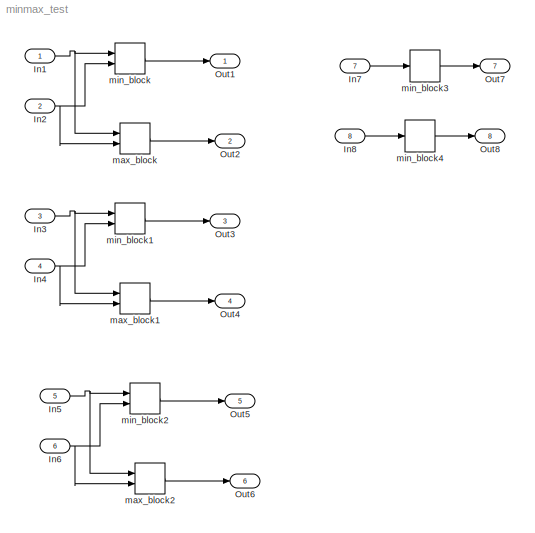
MODEL minmax_test
KIND model
BLOCK [Inport] In1
  IconDisplay = Port number
  SID = 1
BLOCK [Inport] In2
  IconDisplay = Port number
  Port = 2
  SID = 2
BLOCK [Inport] In3
  IconDisplay = Port number
  Port = 3
  PortDimensions = [2]
  SID = 3
BLOCK [Inport] In4
  IconDisplay = Port number
  Port = 4
  PortDimensions = [2]
  SID = 4
BLOCK [Inport] In5
  IconDisplay = Port number
  Port = 5
  PortDimensions = [2 2]
  SID = 5
BLOCK [Inport] In6
  IconDisplay = Port number
  Port = 6
  PortDimensions = [2 2]
  SID = 6
BLOCK [Inport] In7
  IconDisplay = Port number
  Port = 7
  PortDimensions = [3]
  SID = 7
BLOCK [Inport] In8
  IconDisplay = Port number
  Port = 8
  PortDimensions = [7]
  SID = 8
BLOCK [Outport] Out1
  IconDisplay = Port number
  SID = 17
BLOCK [Outport] Out2
  IconDisplay = Port number
  Port = 2
  SID = 18
BLOCK [Outport] Out3
  IconDisplay = Port number
  Port = 3
  SID = 19
BLOCK [Outport] Out4
  IconDisplay = Port number
  Port = 4
  SID = 20
BLOCK [Outport] Out5
  IconDisplay = Port number
  Port = 5
  SID = 21
BLOCK [Outport] Out6
  IconDisplay = Port number
  Port = 6
  SID = 22
BLOCK [Outport] Out7
  IconDisplay = Port number
  Port = 7
  SID = 23
BLOCK [Outport] Out8
  IconDisplay = Port number
  Port = 8
  SID = 24
BLOCK [MinMax] max_block
  Function = max
  InputSameDT = off
  Inputs = 2
  Ports = [2, 1]
  SID = 9
  SaturateOnIntegerOverflow = off
BLOCK [MinMax] max_block1
  Function = max
  InputSameDT = off
  Inputs = 2
  Ports = [2, 1]
  SID = 10
  SaturateOnIntegerOverflow = off
BLOCK [MinMax] max_block2
  Function = max
  InputSameDT = off
  Inputs = 2
  Ports = [2, 1]
  SID = 11
  SaturateOnIntegerOverflow = off
BLOCK [MinMax] min_block
  InputSameDT = off
  Inputs = 2
  Ports = [2, 1]
  SID = 12
  SaturateOnIntegerOverflow = off
BLOCK [MinMax] min_block1
  InputSameDT = off
  Inputs = 2
  Ports = [2, 1]
  SID = 13
  SaturateOnIntegerOverflow = off
BLOCK [MinMax] min_block2
  InputSameDT = off
  Inputs = 2
  Ports = [2, 1]
  SID = 14
  SaturateOnIntegerOverflow = off
BLOCK [MinMax] min_block3
  InputSameDT = off
  Ports = [1, 1]
  SID = 15
  SaturateOnIntegerOverflow = off
BLOCK [MinMax] min_block4
  Function = max
  InputSameDT = off
  Ports = [1, 1]
  SID = 16
  SaturateOnIntegerOverflow = off
NET In1:1 -> max_block:1, min_block:1
NET In2:1 -> max_block:2, min_block:2
NET In3:1 -> max_block1:1, min_block1:1
NET In4:1 -> max_block1:2, min_block1:2
NET In5:1 -> max_block2:1, min_block2:1
NET In6:1 -> max_block2:2, min_block2:2
LINE In7:1 -> min_block3:1
LINE In8:1 -> min_block4:1
LINE max_block1:1 -> Out4:1
LINE max_block2:1 -> Out6:1
LINE max_block:1 -> Out2:1
LINE min_block1:1 -> Out3:1
LINE min_block2:1 -> Out5:1
LINE min_block3:1 -> Out7:1
LINE min_block4:1 -> Out8:1
LINE min_block:1 -> Out1:1
note: NET lines group one-source signal fan-out (src -> all destinations, sorted); 1:1 wires keep LINE
